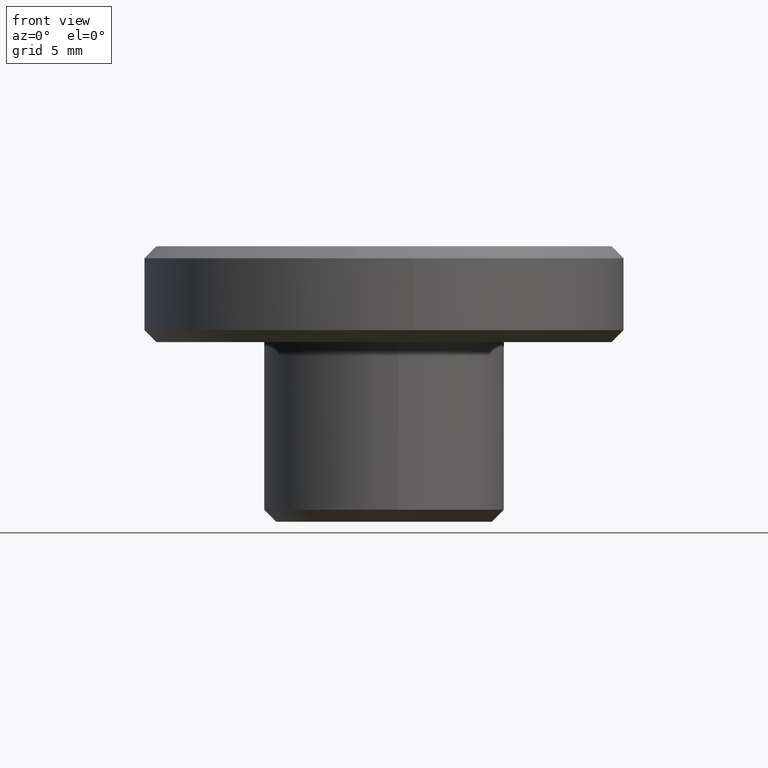
[diagram: clean part render]
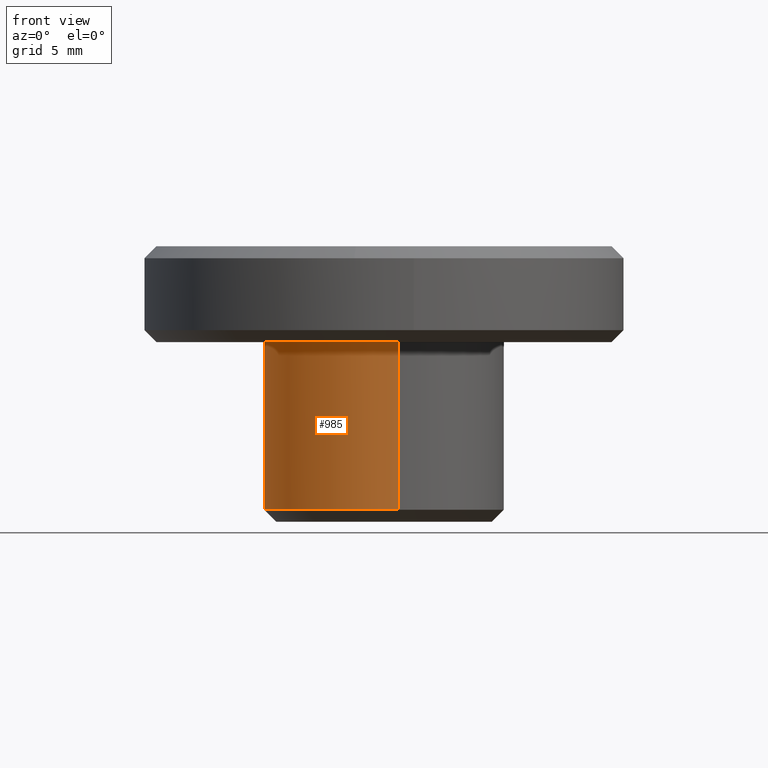
[diagram: same view with one face highlighted and labeled with its STEP entity id]
A machine part, front view. The second image highlights one B-rep face of the part: STEP entity #985.
In plain terms, the highlighted face is a freeform B-spline surface patch.
Its self-contained STEP definition (entity closure, byte-faithful):
#498=CARTESIAN_POINT('',(-2.021077159942054,-4.573319047864791,0.500000000000183));
#499=VERTEX_POINT('',#498);
#500=CARTESIAN_POINT('',(0.620639326116273,-4.961331154728281,0.499999999999940));
#501=VERTEX_POINT('',#500);
#502=CARTESIAN_POINT('',(-2.021077159942054,-4.573319047864791,0.500000000000183));
#503=CARTESIAN_POINT('',(-1.055578086262365,-4.999999999999999,0.499999999999945));
#504=CARTESIAN_POINT('',(0.0,-5.0,0.499999999999945));
#505=CARTESIAN_POINT('',(0.311523945374245,-4.999999999999999,0.499999999999945));
#506=CARTESIAN_POINT('',(0.620639326116273,-4.961331154728281,0.499999999999940));
#514=(BOUNDED_CURVE()B_SPLINE_CURVE(2,(#502,#503,#504,#505,#506),.UNSPECIFIED.,.F.,.U.)B_SPLINE_CURVE_WITH_KNOTS((3,2,3),(0.181361578459757,0.250000000000000,0.271473882450313),.UNSPECIFIED.)CURVE()GEOMETRIC_REPRESENTATION_ITEM()RATIONAL_B_SPLINE_CURVE((0.883326595751699,0.919585087123215,1.0,0.974841781794825,0.954005520552827))REPRESENTATION_ITEM(''));
#515=EDGE_CURVE('',#499,#501,#514,.T.);
#558=CARTESIAN_POINT('',(-0.043630800128547,4.999809631702245,0.499999999999251));
#559=VERTEX_POINT('',#558);
#616=CARTESIAN_POINT('',(-5.0,0.0,0.499999999999945));
#617=VERTEX_POINT('',#616);
#618=CARTESIAN_POINT('',(-5.0,0.0,0.499999999999945));
#619=CARTESIAN_POINT('',(-5.0,-3.256850012954106,0.499999999999945));
#620=CARTESIAN_POINT('',(-2.021077159942054,-4.573319047864791,0.500000000000183));
#628=(BOUNDED_CURVE()B_SPLINE_CURVE(2,(#618,#619,#620),.UNSPECIFIED.,.F.,.U.)B_SPLINE_CURVE_WITH_KNOTS((3,3),(0.0,0.181361578459757),.UNSPECIFIED.)CURVE()GEOMETRIC_REPRESENTATION_ITEM()RATIONAL_B_SPLINE_CURVE((1.0,0.787521694063333,0.883326595751699))REPRESENTATION_ITEM(''));
#629=EDGE_CURVE('',#617,#499,#628,.T.);
#631=CARTESIAN_POINT('',(-0.043630800128547,4.999809631702246,0.499999999999251));
#632=CARTESIAN_POINT('',(-5.000000000000001,4.956557914168263,0.499999999999945));
#633=CARTESIAN_POINT('',(-5.0,0.0,0.499999999999945));
#641=(BOUNDED_CURVE()B_SPLINE_CURVE(2,(#631,#632,#633),.UNSPECIFIED.,.F.,.U.)B_SPLINE_CURVE_WITH_KNOTS((3,3),(0.751539828195666,1.0),.UNSPECIFIED.)CURVE()GEOMETRIC_REPRESENTATION_ITEM()RATIONAL_B_SPLINE_CURVE((0.996414181165367,0.708910802133141,1.0))REPRESENTATION_ITEM(''));
#642=EDGE_CURVE('',#559,#617,#641,.T.);
#879=CARTESIAN_POINT('',(-0.043628661551656,4.999809650364210,7.500000000000000));
#880=VERTEX_POINT('',#879);
#881=CARTESIAN_POINT('',(-0.043630800128547,4.999809631702245,0.499999999999251));
#882=CARTESIAN_POINT('',(-0.043628661551656,4.999809650364210,7.500000000000000));
#883=QUASI_UNIFORM_CURVE('',1,(#881,#882),.UNSPECIFIED.,.F.,.U.);
#884=EDGE_CURVE('',#559,#880,#883,.T.);
#903=CARTESIAN_POINT('',(0.620634546352657,-4.961331752649010,7.500000000000000));
#904=VERTEX_POINT('',#903);
#918=CARTESIAN_POINT('',(0.620639326116273,-4.961331154728281,0.499999999999940));
#919=CARTESIAN_POINT('',(0.620634546352657,-4.961331752649010,7.500000000000000));
#920=QUASI_UNIFORM_CURVE('',1,(#918,#919),.UNSPECIFIED.,.F.,.U.);
#921=EDGE_CURVE('',#501,#904,#920,.T.);
#926=CARTESIAN_POINT('',(-0.043632677491869,4.999809615320855,0.324999999999944));
#927=CARTESIAN_POINT('',(-5.043442292812725,4.956176937828985,0.324999999999944));
#928=CARTESIAN_POINT('',(-4.999809615320855,-0.043632677491869,0.324999999999944));
#929=CARTESIAN_POINT('',(-4.956176937828985,-5.043442292812725,0.324999999999944));
#930=CARTESIAN_POINT('',(0.043632677491869,-4.999809615320855,0.324999999999944));
#931=CARTESIAN_POINT('',(0.333250794790868,-4.997282156301378,0.324999999999943));
#932=CARTESIAN_POINT('',(0.620640010399146,-4.961331069127693,0.324999999999943));
#933=CARTESIAN_POINT('',(-0.043632677491869,4.999809615320855,7.679375000000003));
#934=CARTESIAN_POINT('',(-5.043442292812725,4.956176937828985,7.679375000000004));
#935=CARTESIAN_POINT('',(-4.999809615320855,-0.043632677491869,7.679375000000003));
#936=CARTESIAN_POINT('',(-4.956176937828985,-5.043442292812725,7.679375000000004));
#937=CARTESIAN_POINT('',(0.043632677491869,-4.999809615320855,7.679375000000003));
#938=CARTESIAN_POINT('',(0.333250794790868,-4.997282156301378,7.679375000000003));
#939=CARTESIAN_POINT('',(0.620640010399146,-4.961331069127693,7.679375000000002));
#947=(BOUNDED_SURFACE()B_SPLINE_SURFACE(2,1,((#926,#933),(#927,#934),(#928,#935),(#929,#936),(#930,#937),(#931,#938),(#932,#939)),.UNSPECIFIED.,.F.,.F.,.U.)B_SPLINE_SURFACE_WITH_KNOTS((3,2,2,3),(2,2),(0.0,8.284271247461899,16.568542494923800,17.231284194720750),(0.0,7.354375000000061),.UNSPECIFIED.)GEOMETRIC_REPRESENTATION_ITEM()RATIONAL_B_SPLINE_SURFACE(((1.0,1.0),(0.707106781186548,0.707106781186548),(1.0,1.0),(0.707106781186548,0.707106781186548),(1.0,1.0),(0.976568542494924,0.976568542494924),(0.956886118190660,0.956886118190660)))REPRESENTATION_ITEM('')SURFACE());
#948=ORIENTED_EDGE('',*,*,#629,.T.);
#949=ORIENTED_EDGE('',*,*,#515,.T.);
#950=ORIENTED_EDGE('',*,*,#921,.T.);
#951=CARTESIAN_POINT('',(-5.0,0.0,7.500000000000000));
#952=VERTEX_POINT('',#951);
#953=CARTESIAN_POINT('',(0.620634546352657,-4.961331752649010,7.500000000000000));
#954=CARTESIAN_POINT('',(0.311521873663028,-5.0,7.500000000000001));
#955=CARTESIAN_POINT('',(0.0,-5.0,7.500000000000000));
#956=CARTESIAN_POINT('',(-5.000000000000001,-5.000000000000001,7.500000000000000));
#957=CARTESIAN_POINT('',(-5.0,0.0,7.500000000000000));
#965=(BOUNDED_CURVE()B_SPLINE_CURVE(2,(#953,#954,#955,#956,#957),.UNSPECIFIED.,.F.,.U.)B_SPLINE_CURVE_WITH_KNOTS((3,2,3),(0.728526256763575,0.750000000000000,1.0),.UNSPECIFIED.)CURVE()GEOMETRIC_REPRESENTATION_ITEM()RATIONAL_B_SPLINE_CURVE((0.954005790713464,0.974841944894039,1.0,0.707106781186548,1.0))REPRESENTATION_ITEM(''));
#966=EDGE_CURVE('',#904,#952,#965,.T.);
#967=ORIENTED_EDGE('',*,*,#966,.T.);
#968=CARTESIAN_POINT('',(-5.0,0.0,7.500000000000000));
#969=CARTESIAN_POINT('',(-4.999999999999999,4.956560034326192,7.500000000000000));
#970=CARTESIAN_POINT('',(-0.043628661551656,4.999809650364210,7.500000000000000));
#978=(BOUNDED_CURVE()B_SPLINE_CURVE(2,(#968,#969,#970),.UNSPECIFIED.,.F.,.U.)B_SPLINE_CURVE_WITH_KNOTS((3,3),(0.0,0.248460247146196),.UNSPECIFIED.)CURVE()GEOMETRIC_REPRESENTATION_ITEM()RATIONAL_B_SPLINE_CURVE((1.0,0.708910713864659,0.996414355527691))REPRESENTATION_ITEM(''));
#979=EDGE_CURVE('',#952,#880,#978,.T.);
#980=ORIENTED_EDGE('',*,*,#979,.T.);
#981=ORIENTED_EDGE('',*,*,#884,.F.);
#982=ORIENTED_EDGE('',*,*,#642,.T.);
#983=EDGE_LOOP('',(#948,#949,#950,#967,#980,#981,#982));
#984=FACE_OUTER_BOUND('',#983,.T.);
#985=ADVANCED_FACE('',(#984),#947,.T.);